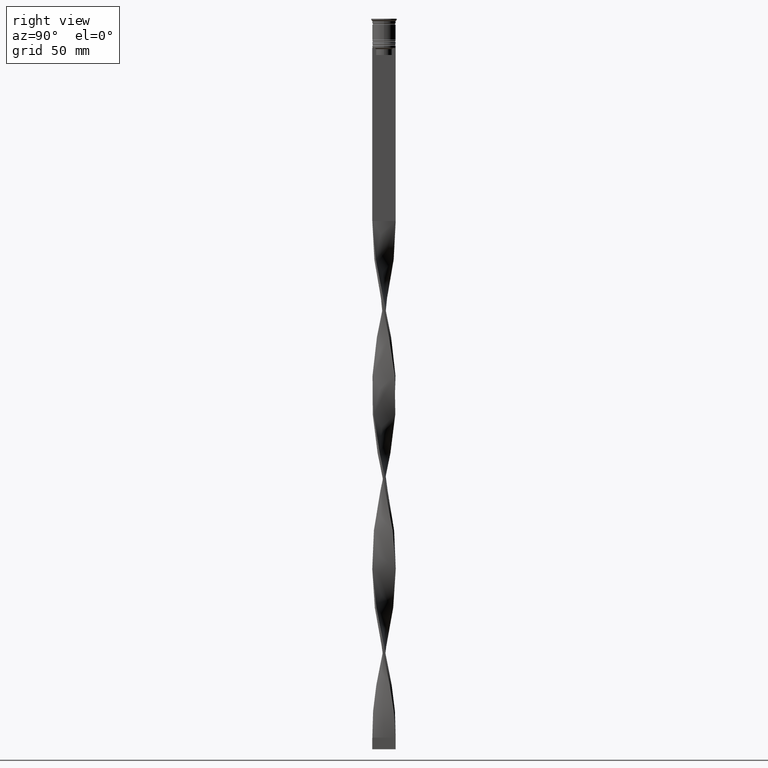
[diagram: clean part render]
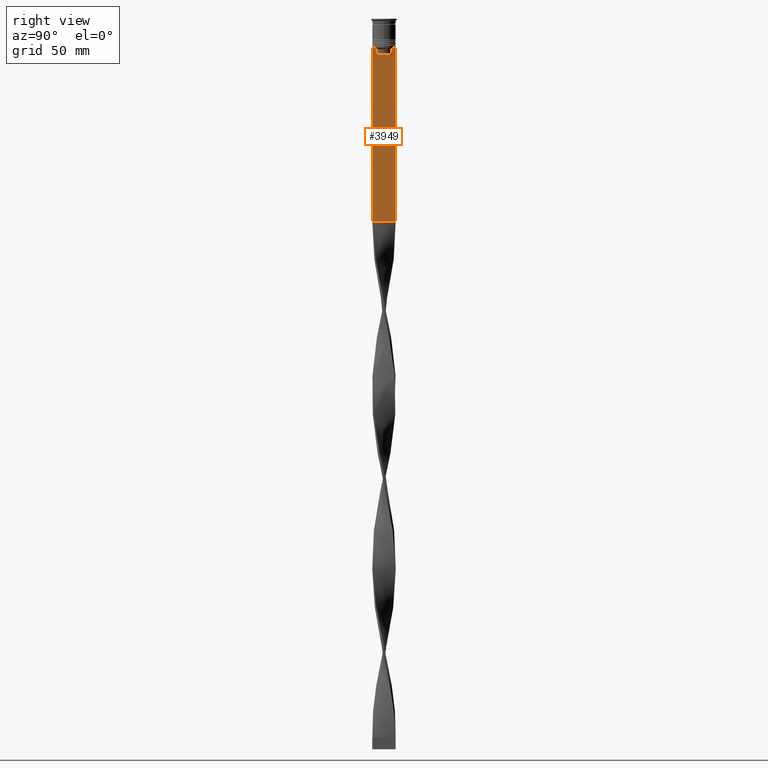
[diagram: same view with one face highlighted and labeled with its STEP entity id]
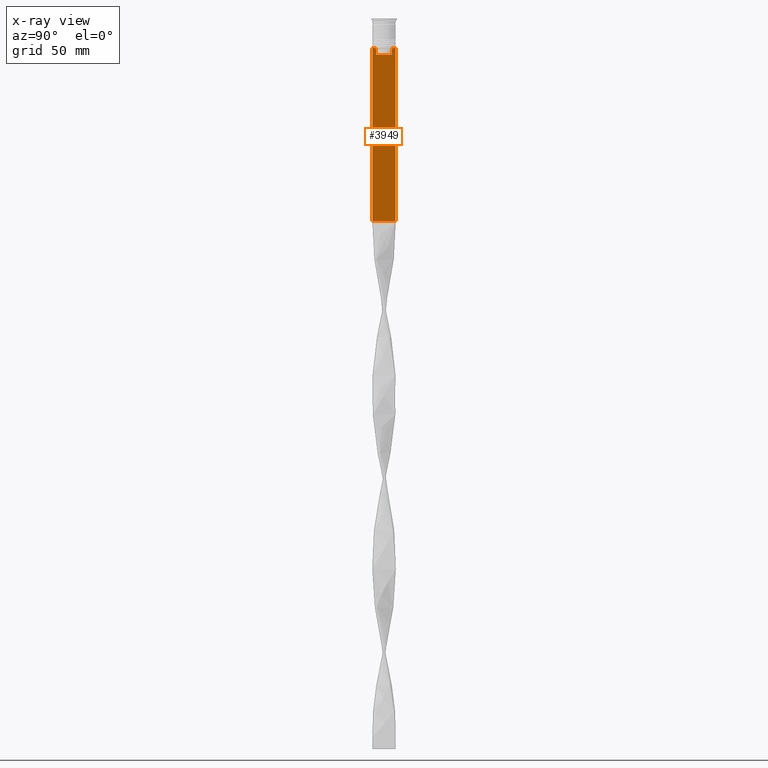
[diagram: x-ray of the same camera — body ghosted, the highlighted face saturated]
A machine part, right view. The second image highlights one B-rep face of the part: STEP entity #3949.
The next image is the same camera in x-ray: the body ghosted, the highlighted face saturated — about 0% of this face is hidden behind the body in this view.
In plain terms, the highlighted planar face has unit normal (-1, 0, 0).
Its self-contained STEP definition (entity closure, byte-faithful):
#14 = CARTESIAN_POINT ( 'NONE',  ( 0.5000000000000000000, -4.999999999999999112, -86.50000000000000000 ) ) ;
#57 = LINE ( 'NONE', #995, #4036 ) ;
#66 = CARTESIAN_POINT ( 'NONE',  ( 0.5000000000000000000, 3.531412678228260216, -12.83345231756357840 ) ) ;
#103 = CARTESIAN_POINT ( 'NONE',  ( 0.5000000000000000000, -4.999999999999999112, -12.50000000000000000 ) ) ;
#110 = CARTESIAN_POINT ( 'NONE',  ( 0.5000000000000000000, 3.399999999999998135, -15.50000000000000000 ) ) ;
#124 = DIRECTION ( 'NONE',  ( -1.000000000000000000, 0.000000000000000000, 0.000000000000000000 ) ) ;
#166 = DIRECTION ( 'NONE',  ( 0.000000000000000000, -1.000000000000000000, 0.000000000000000000 ) ) ;
#202 = CARTESIAN_POINT ( 'NONE',  ( 0.5000000000000000000, -4.999999999999999112, -2.450124378879110054 ) ) ;
#206 = CARTESIAN_POINT ( 'NONE',  ( 0.5000000000000000000, 3.363034344160045208, 0.000000000000000000 ) ) ;
#230 = VECTOR ( 'NONE', #2283, 1000.000000000000000 ) ;
#231 = DIRECTION ( 'NONE',  ( 0.000000000000000000, -1.000000000000000000, 0.000000000000000000 ) ) ;
#254 = ORIENTED_EDGE ( 'NONE', *, *, #1920, .T. ) ;
#264 = EDGE_CURVE ( 'NONE', #2409, #312, #469, .T. ) ;
#312 = VERTEX_POINT ( 'NONE', #2394 ) ;
#361 = LINE ( 'NONE', #14, #3829 ) ;
#367 = EDGE_CURVE ( 'NONE', #3360, #2563, #2284, .T. ) ;
#398 = EDGE_CURVE ( 'NONE', #2162, #3409, #2938, .T. ) ;
#415 = CARTESIAN_POINT ( 'NONE',  ( 0.5000000000000000000, 3.363034344160045208, -13.00000000000000178 ) ) ;
#427 = CARTESIAN_POINT ( 'NONE',  ( 0.5000000000000000000, -3.867815921162742754, -12.50000000000000000 ) ) ;
#469 = LINE ( 'NONE', #1748, #686 ) ;
#505 = DIRECTION ( 'NONE',  ( 0.000000000000000000, 0.000000000000000000, -1.000000000000000000 ) ) ;
#521 = FACE_OUTER_BOUND ( 'NONE', #691, .T. ) ;
#543 = CARTESIAN_POINT ( 'NONE',  ( 0.5000000000000000000, -4.999999999999999112, -2.450124378879110054 ) ) ;
#564 = VECTOR ( 'NONE', #877, 1000.000000000000000 ) ;
#686 = VECTOR ( 'NONE', #1429, 1000.000000000000000 ) ;
#691 = EDGE_LOOP ( 'NONE', ( #3425, #2265, #3714, #3415, #254, #1786, #3059, #1930, #1176, #795, #3806, #757 ) ) ;
#701 = CARTESIAN_POINT ( 'NONE',  ( 0.5000000000000000000, -3.363034344160045652, -15.50000000000000000 ) ) ;
#731 = CARTESIAN_POINT ( 'NONE',  ( 0.5000000000000000000, -3.699658232838647365, -12.66676999593996555 ) ) ;
#750 = VECTOR ( 'NONE', #2308, 1000.000000000000000 ) ;
#757 = ORIENTED_EDGE ( 'NONE', *, *, #3515, .T. ) ;
#795 = ORIENTED_EDGE ( 'NONE', *, *, #2603, .T. ) ;
#860 = EDGE_CURVE ( 'NONE', #2563, #2162, #2754, .T. ) ;
#877 = DIRECTION ( 'NONE',  ( 0.000000000000000000, 0.000000000000000000, -1.000000000000000000 ) ) ;
#907 = CARTESIAN_POINT ( 'NONE',  ( 0.5000000000000000000, -4.999999999999999112, -12.50000000000000000 ) ) ;
#995 = CARTESIAN_POINT ( 'NONE',  ( 0.5000000000000000000, -4.999999999999999112, -12.50000000000000000 ) ) ;
#1033 = CARTESIAN_POINT ( 'NONE',  ( 0.5000000000000000000, -3.531412985305424801, -12.83345201382502765 ) ) ;
#1084 = CARTESIAN_POINT ( 'NONE',  ( 0.5000000000000000000, -4.999999999999999112, -12.50000000000000000 ) ) ;
#1174 = CARTESIAN_POINT ( 'NONE',  ( 0.5000000000000000000, 3.363034344160045652, -15.50000000000000000 ) ) ;
#1176 = ORIENTED_EDGE ( 'NONE', *, *, #2738, .T. ) ;
#1283 = DIRECTION ( 'NONE',  ( 0.000000000000000000, 1.000000000000000000, 0.000000000000000000 ) ) ;
#1306 = VECTOR ( 'NONE', #3809, 1000.000000000000000 ) ;
#1323 = CARTESIAN_POINT ( 'NONE',  ( 0.5000000000000000000, 3.363034344160045208, -13.00000000000000178 ) ) ;
#1326 = CARTESIAN_POINT ( 'NONE',  ( 0.5000000000000000000, 3.867815921162742754, -12.50000000000000000 ) ) ;
#1416 = LINE ( 'NONE', #543, #3098 ) ;
#1429 = DIRECTION ( 'NONE',  ( 0.000000000000000000, 0.000000000000000000, -1.000000000000000000 ) ) ;
#1430 = VECTOR ( 'NONE', #166, 1000.000000000000000 ) ;
#1476 = DIRECTION ( 'NONE',  ( 0.000000000000000000, 0.000000000000000000, 1.000000000000000000 ) ) ;
#1493 = EDGE_CURVE ( 'NONE', #2116, #2851, #3766, .T. ) ;
#1654 = B_SPLINE_CURVE_WITH_KNOTS ( 'NONE', 3,
 ( #3303, #1033, #731, #3951 ),
 .UNSPECIFIED., .F., .F.,
 ( 4, 4 ),
 ( 0.01632394437298965648, 0.01703543518243618576 ),
 .UNSPECIFIED. ) ;
#1748 = CARTESIAN_POINT ( 'NONE',  ( 0.5000000000000000000, 5.000000000000000888, -2.450124378879110054 ) ) ;
#1786 = ORIENTED_EDGE ( 'NONE', *, *, #1963, .T. ) ;
#1800 = PLANE ( 'NONE',  #2854 ) ;
#1920 = EDGE_CURVE ( 'NONE', #3409, #3738, #2623, .T. ) ;
#1930 = ORIENTED_EDGE ( 'NONE', *, *, #1493, .T. ) ;
#1963 = EDGE_CURVE ( 'NONE', #3738, #3602, #1654, .T. ) ;
#2054 = CARTESIAN_POINT ( 'NONE',  ( 0.5000000000000000000, 3.699657965831574913, -12.66677026074361301 ) ) ;
#2073 = EDGE_CURVE ( 'NONE', #3976, #3360, #2739, .T. ) ;
#2116 = VERTEX_POINT ( 'NONE', #3339 ) ;
#2162 = VERTEX_POINT ( 'NONE', #1174 ) ;
#2265 = ORIENTED_EDGE ( 'NONE', *, *, #367, .T. ) ;
#2283 = DIRECTION ( 'NONE',  ( -0.000000000000000000, -0.000000000000000000, 1.000000000000000000 ) ) ;
#2284 = B_SPLINE_CURVE_WITH_KNOTS ( 'NONE', 3,
 ( #3281, #2054, #66, #415 ),
 .UNSPECIFIED., .F., .F.,
 ( 4, 4 ),
 ( 0.006644825462451552783, 0.007355321358912435097 ),
 .UNSPECIFIED. ) ;
#2308 = DIRECTION ( 'NONE',  ( 0.000000000000000000, -1.000000000000000000, 0.000000000000000000 ) ) ;
#2394 = CARTESIAN_POINT ( 'NONE',  ( 0.5000000000000000000, 5.000000000000000888, -86.50000000000000000 ) ) ;
#2409 = VERTEX_POINT ( 'NONE', #4044 ) ;
#2424 = VECTOR ( 'NONE', #231, 1000.000000000000000 ) ;
#2563 = VERTEX_POINT ( 'NONE', #1323 ) ;
#2603 = EDGE_CURVE ( 'NONE', #3372, #312, #361, .T. ) ;
#2623 = LINE ( 'NONE', #2957, #230 ) ;
#2738 = EDGE_CURVE ( 'NONE', #2851, #3372, #1416, .T. ) ;
#2739 = LINE ( 'NONE', #4012, #2424 ) ;
#2754 = LINE ( 'NONE', #206, #564 ) ;
#2851 = VERTEX_POINT ( 'NONE', #103 ) ;
#2854 = AXIS2_PLACEMENT_3D ( 'NONE', #202, #124, #1476 ) ;
#2938 = LINE ( 'NONE', #110, #750 ) ;
#2957 = CARTESIAN_POINT ( 'NONE',  ( 0.5000000000000000000, -3.363034344160045208, 0.000000000000000000 ) ) ;
#3059 = ORIENTED_EDGE ( 'NONE', *, *, #3853, .T. ) ;
#3098 = VECTOR ( 'NONE', #505, 1000.000000000000000 ) ;
#3281 = CARTESIAN_POINT ( 'NONE',  ( 0.5000000000000000000, 3.867815921162742754, -12.50000000000000000 ) ) ;
#3303 = CARTESIAN_POINT ( 'NONE',  ( 0.5000000000000000000, -3.363034344160045208, -13.00000000000000178 ) ) ;
#3311 = CARTESIAN_POINT ( 'NONE',  ( 0.5000000000000000000, -3.363034344160045208, -13.00000000000000178 ) ) ;
#3339 = CARTESIAN_POINT ( 'NONE',  ( 0.5000000000000000000, -4.874423042781575788, -12.50000000000000000 ) ) ;
#3360 = VERTEX_POINT ( 'NONE', #1326 ) ;
#3372 = VERTEX_POINT ( 'NONE', #3546 ) ;
#3409 = VERTEX_POINT ( 'NONE', #701 ) ;
#3415 = ORIENTED_EDGE ( 'NONE', *, *, #398, .T. ) ;
#3425 = ORIENTED_EDGE ( 'NONE', *, *, #2073, .T. ) ;
#3515 = EDGE_CURVE ( 'NONE', #2409, #3976, #57, .T. ) ;
#3546 = CARTESIAN_POINT ( 'NONE',  ( 0.5000000000000000000, -4.999999999999999112, -86.50000000000000000 ) ) ;
#3567 = DIRECTION ( 'NONE',  ( 0.000000000000000000, -1.000000000000000000, 0.000000000000000000 ) ) ;
#3602 = VERTEX_POINT ( 'NONE', #427 ) ;
#3714 = ORIENTED_EDGE ( 'NONE', *, *, #860, .T. ) ;
#3738 = VERTEX_POINT ( 'NONE', #3311 ) ;
#3766 = LINE ( 'NONE', #907, #1306 ) ;
#3806 = ORIENTED_EDGE ( 'NONE', *, *, #264, .F. ) ;
#3809 = DIRECTION ( 'NONE',  ( 0.000000000000000000, -1.000000000000000000, 0.000000000000000000 ) ) ;
#3826 = CARTESIAN_POINT ( 'NONE',  ( 0.5000000000000000000, 4.874423042781575788, -12.50000000000000000 ) ) ;
#3829 = VECTOR ( 'NONE', #1283, 1000.000000000000000 ) ;
#3853 = EDGE_CURVE ( 'NONE', #3602, #2116, #3988, .T. ) ;
#3949 = ADVANCED_FACE ( 'NONE', ( #521 ), #1800, .F. ) ;
#3951 = CARTESIAN_POINT ( 'NONE',  ( 0.5000000000000000000, -3.867815921162742754, -12.50000000000000000 ) ) ;
#3976 = VERTEX_POINT ( 'NONE', #3826 ) ;
#3988 = LINE ( 'NONE', #1084, #1430 ) ;
#4012 = CARTESIAN_POINT ( 'NONE',  ( 0.5000000000000000000, -4.999999999999999112, -12.50000000000000000 ) ) ;
#4036 = VECTOR ( 'NONE', #3567, 1000.000000000000000 ) ;
#4044 = CARTESIAN_POINT ( 'NONE',  ( 0.5000000000000000000, 5.000000000000000888, -12.50000000000000000 ) ) ;